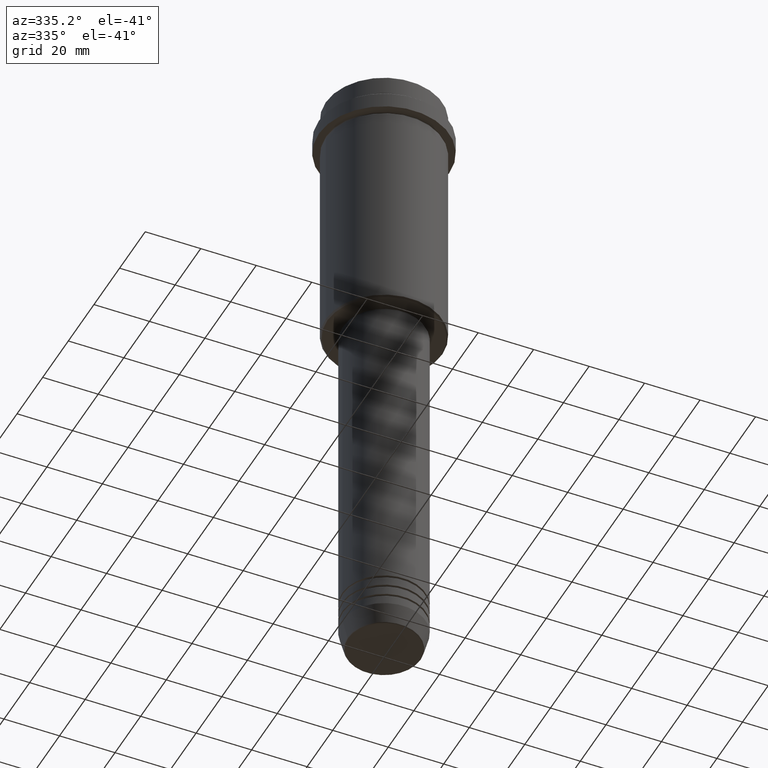
[diagram: clean part render]
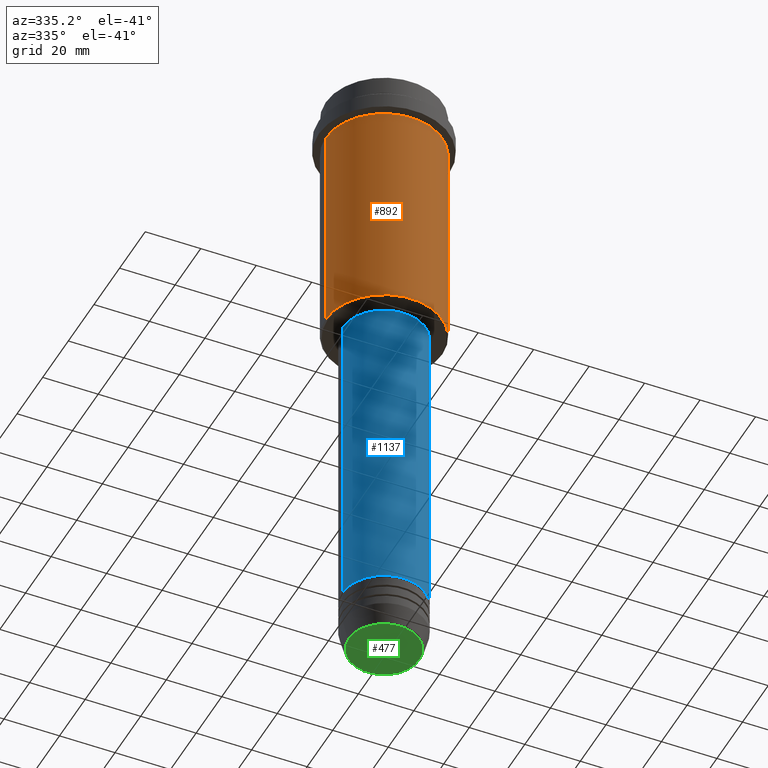
[diagram: same view with three faces highlighted in distinct colors, each labeled with its STEP entity id]
A machine part, auxiliary view with three faces highlighted in distinct colors.
Their STEP definitions:

[orange] entity #892 — the highlighted cylindrical surface (partial cylindrical patch) has radius 21 mm, axis along (-0, -0, 1).
#37 = CARTESIAN_POINT ( 'NONE',  ( -20.99999999999999645, 2.571758278209441267E-15, 0.000000000000000000 ) ) ;
#66 = CARTESIAN_POINT ( 'NONE',  ( -20.99999999999999645, 2.571758278209441267E-15, -94.49999999999997158 ) ) ;
#86 = EDGE_LOOP ( 'NONE', ( #1110, #1113, #465, #127 ) ) ;
#110 = VERTEX_POINT ( 'NONE', #855 ) ;
#127 = ORIENTED_EDGE ( 'NONE', *, *, #458, .F. ) ;
#152 = LINE ( 'NONE', #37, #182 ) ;
#161 = CARTESIAN_POINT ( 'NONE',  ( 0.000000000000000000, 0.000000000000000000, -94.49999999999997158 ) ) ;
#182 = VECTOR ( 'NONE', #1343, 1000.000000000000000 ) ;
#214 = VERTEX_POINT ( 'NONE', #679 ) ;
#226 = EDGE_CURVE ( 'NONE', #987, #973, #152, .T. ) ;
#239 = CIRCLE ( 'NONE', #1297, 20.99999999999999645 ) ;
#267 = FACE_OUTER_BOUND ( 'NONE', #86, .T. ) ;
#280 = DIRECTION ( 'NONE',  ( -1.000000000000000000, 0.000000000000000000, 0.000000000000000000 ) ) ;
#390 = DIRECTION ( 'NONE',  ( -0.000000000000000000, -0.000000000000000000, 1.000000000000000000 ) ) ;
#415 = AXIS2_PLACEMENT_3D ( 'NONE', #161, #390, #280 ) ;
#418 = VECTOR ( 'NONE', #638, 1000.000000000000000 ) ;
#458 = EDGE_CURVE ( 'NONE', #973, #214, #239, .T. ) ;
#465 = ORIENTED_EDGE ( 'NONE', *, *, #674, .T. ) ;
#471 = CARTESIAN_POINT ( 'NONE',  ( 0.000000000000000000, 0.000000000000000000, 0.000000000000000000 ) ) ;
#505 = EDGE_CURVE ( 'NONE', #987, #110, #858, .T. ) ;
#513 = CARTESIAN_POINT ( 'NONE',  ( -20.99999999999999645, 2.571758278209441267E-15, -16.00000000000000355 ) ) ;
#586 = AXIS2_PLACEMENT_3D ( 'NONE', #471, #810, #1057 ) ;
#604 = CYLINDRICAL_SURFACE ( 'NONE', #586, 20.99999999999999645 ) ;
#638 = DIRECTION ( 'NONE',  ( -0.000000000000000000, -0.000000000000000000, 1.000000000000000000 ) ) ;
#668 = DIRECTION ( 'NONE',  ( 1.000000000000000000, 0.000000000000000000, 0.000000000000000000 ) ) ;
#674 = EDGE_CURVE ( 'NONE', #110, #214, #967, .T. ) ;
#679 = CARTESIAN_POINT ( 'NONE',  ( 20.99999999999999645, 0.000000000000000000, -16.00000000000000355 ) ) ;
#810 = DIRECTION ( 'NONE',  ( -0.000000000000000000, -0.000000000000000000, 1.000000000000000000 ) ) ;
#855 = CARTESIAN_POINT ( 'NONE',  ( 20.99999999999999645, 0.000000000000000000, -94.49999999999997158 ) ) ;
#858 = CIRCLE ( 'NONE', #415, 20.99999999999999645 ) ;
#892 = ADVANCED_FACE ( 'NONE', ( #267 ), #604, .T. ) ;
#967 = LINE ( 'NONE', #1293, #418 ) ;
#973 = VERTEX_POINT ( 'NONE', #513 ) ;
#987 = VERTEX_POINT ( 'NONE', #66 ) ;
#1037 = CARTESIAN_POINT ( 'NONE',  ( 0.000000000000000000, 0.000000000000000000, -16.00000000000000355 ) ) ;
#1057 = DIRECTION ( 'NONE',  ( 1.000000000000000000, 0.000000000000000000, 0.000000000000000000 ) ) ;
#1110 = ORIENTED_EDGE ( 'NONE', *, *, #226, .F. ) ;
#1113 = ORIENTED_EDGE ( 'NONE', *, *, #505, .T. ) ;
#1197 = DIRECTION ( 'NONE',  ( -0.000000000000000000, -0.000000000000000000, 1.000000000000000000 ) ) ;
#1293 = CARTESIAN_POINT ( 'NONE',  ( 20.99999999999999645, 0.000000000000000000, 0.000000000000000000 ) ) ;
#1297 = AXIS2_PLACEMENT_3D ( 'NONE', #1037, #1197, #668 ) ;
#1343 = DIRECTION ( 'NONE',  ( -0.000000000000000000, -0.000000000000000000, 1.000000000000000000 ) ) ;

[blue] entity #1137 — the highlighted cylindrical surface (partial cylindrical patch) has radius 15 mm, axis along (-0, -0, 1).
#12 = LINE ( 'NONE', #434, #1319 ) ;
#39 = ORIENTED_EDGE ( 'NONE', *, *, #1142, .F. ) ;
#89 = CARTESIAN_POINT ( 'NONE',  ( -15.00000000000000000, 1.836970198721029589E-15, -96.00000000000000000 ) ) ;
#104 = ORIENTED_EDGE ( 'NONE', *, *, #200, .F. ) ;
#185 = AXIS2_PLACEMENT_3D ( 'NONE', #1005, #1104, #452 ) ;
#200 = EDGE_CURVE ( 'NONE', #551, #1395, #511, .T. ) ;
#211 = DIRECTION ( 'NONE',  ( -0.000000000000000000, -0.000000000000000000, 1.000000000000000000 ) ) ;
#229 = CARTESIAN_POINT ( 'NONE',  ( 0.000000000000000000, 0.000000000000000000, 0.000000000000000000 ) ) ;
#300 = DIRECTION ( 'NONE',  ( 1.000000000000000000, 0.000000000000000000, 0.000000000000000000 ) ) ;
#301 = AXIS2_PLACEMENT_3D ( 'NONE', #1383, #406, #300 ) ;
#302 = CARTESIAN_POINT ( 'NONE',  ( 15.00000000000000000, 0.000000000000000000, -210.9999999999999432 ) ) ;
#325 = CARTESIAN_POINT ( 'NONE',  ( -15.00000000000000000, 1.836970198721029589E-15, -210.9999999999999432 ) ) ;
#388 = CARTESIAN_POINT ( 'NONE',  ( 15.00000000000000000, 0.000000000000000000, -96.00000000000000000 ) ) ;
#406 = DIRECTION ( 'NONE',  ( -0.000000000000000000, -0.000000000000000000, 1.000000000000000000 ) ) ;
#434 = CARTESIAN_POINT ( 'NONE',  ( -15.00000000000000000, 1.836970198721029589E-15, 0.000000000000000000 ) ) ;
#452 = DIRECTION ( 'NONE',  ( 1.000000000000000000, 0.000000000000000000, 0.000000000000000000 ) ) ;
#511 = CIRCLE ( 'NONE', #301, 15.00000000000000000 ) ;
#551 = VERTEX_POINT ( 'NONE', #89 ) ;
#566 = VECTOR ( 'NONE', #749, 1000.000000000000000 ) ;
#669 = FACE_OUTER_BOUND ( 'NONE', #970, .T. ) ;
#749 = DIRECTION ( 'NONE',  ( -0.000000000000000000, -0.000000000000000000, 1.000000000000000000 ) ) ;
#777 = EDGE_CURVE ( 'NONE', #1108, #1035, #1212, .T. ) ;
#861 = AXIS2_PLACEMENT_3D ( 'NONE', #229, #211, #1414 ) ;
#873 = DIRECTION ( 'NONE',  ( -0.000000000000000000, -0.000000000000000000, 1.000000000000000000 ) ) ;
#970 = EDGE_LOOP ( 'NONE', ( #39, #1258, #1411, #104 ) ) ;
#982 = EDGE_CURVE ( 'NONE', #1035, #1395, #1170, .T. ) ;
#1005 = CARTESIAN_POINT ( 'NONE',  ( 0.000000000000000000, 0.000000000000000000, -210.9999999999999432 ) ) ;
#1035 = VERTEX_POINT ( 'NONE', #302 ) ;
#1104 = DIRECTION ( 'NONE',  ( -0.000000000000000000, -0.000000000000000000, 1.000000000000000000 ) ) ;
#1108 = VERTEX_POINT ( 'NONE', #325 ) ;
#1137 = ADVANCED_FACE ( 'NONE', ( #669 ), #1203, .T. ) ;
#1142 = EDGE_CURVE ( 'NONE', #1108, #551, #12, .T. ) ;
#1170 = LINE ( 'NONE', #1290, #566 ) ;
#1203 = CYLINDRICAL_SURFACE ( 'NONE', #861, 15.00000000000000000 ) ;
#1212 = CIRCLE ( 'NONE', #185, 15.00000000000000000 ) ;
#1258 = ORIENTED_EDGE ( 'NONE', *, *, #777, .T. ) ;
#1290 = CARTESIAN_POINT ( 'NONE',  ( 15.00000000000000000, 0.000000000000000000, 0.000000000000000000 ) ) ;
#1319 = VECTOR ( 'NONE', #873, 1000.000000000000000 ) ;
#1383 = CARTESIAN_POINT ( 'NONE',  ( 0.000000000000000000, 0.000000000000000000, -96.00000000000000000 ) ) ;
#1395 = VERTEX_POINT ( 'NONE', #388 ) ;
#1411 = ORIENTED_EDGE ( 'NONE', *, *, #982, .T. ) ;
#1414 = DIRECTION ( 'NONE',  ( 1.000000000000000000, 0.000000000000000000, 0.000000000000000000 ) ) ;

[green] entity #477 — the highlighted planar face has unit normal (0, -0, 1).
#46 = CIRCLE ( 'NONE', #953, 12.74069215899266361 ) ;
#136 = VERTEX_POINT ( 'NONE', #1288 ) ;
#260 = DIRECTION ( 'NONE',  ( 1.000000000000000000, 0.000000000000000000, 0.000000000000000000 ) ) ;
#261 = AXIS2_PLACEMENT_3D ( 'NONE', #1220, #829, #260 ) ;
#417 = EDGE_CURVE ( 'NONE', #645, #136, #46, .T. ) ;
#451 = AXIS2_PLACEMENT_3D ( 'NONE', #553, #882, #1227 ) ;
#477 = ADVANCED_FACE ( 'NONE', ( #780 ), #774, .F. ) ;
#523 = CARTESIAN_POINT ( 'NONE',  ( -12.74069215899266361, 1.589857736427681429E-15, -230.0000000000000284 ) ) ;
#553 = CARTESIAN_POINT ( 'NONE',  ( 0.000000000000000000, 0.000000000000000000, -230.0000000000000284 ) ) ;
#645 = VERTEX_POINT ( 'NONE', #523 ) ;
#659 = CIRCLE ( 'NONE', #451, 12.74069215899266361 ) ;
#735 = ORIENTED_EDGE ( 'NONE', *, *, #417, .T. ) ;
#774 = PLANE ( 'NONE',  #261 ) ;
#780 = FACE_OUTER_BOUND ( 'NONE', #1031, .T. ) ;
#818 = DIRECTION ( 'NONE',  ( 0.000000000000000000, 0.000000000000000000, -1.000000000000000000 ) ) ;
#829 = DIRECTION ( 'NONE',  ( 0.000000000000000000, -0.000000000000000000, 1.000000000000000000 ) ) ;
#847 = ORIENTED_EDGE ( 'NONE', *, *, #1202, .T. ) ;
#882 = DIRECTION ( 'NONE',  ( 0.000000000000000000, 0.000000000000000000, -1.000000000000000000 ) ) ;
#942 = CARTESIAN_POINT ( 'NONE',  ( 0.000000000000000000, 0.000000000000000000, -230.0000000000000284 ) ) ;
#953 = AXIS2_PLACEMENT_3D ( 'NONE', #942, #818, #1270 ) ;
#1031 = EDGE_LOOP ( 'NONE', ( #847, #735 ) ) ;
#1202 = EDGE_CURVE ( 'NONE', #136, #645, #659, .T. ) ;
#1220 = CARTESIAN_POINT ( 'NONE',  ( 0.000000000000000000, 0.000000000000000000, -230.0000000000000284 ) ) ;
#1227 = DIRECTION ( 'NONE',  ( 1.000000000000000000, 0.000000000000000000, 0.000000000000000000 ) ) ;
#1270 = DIRECTION ( 'NONE',  ( 1.000000000000000000, 0.000000000000000000, 0.000000000000000000 ) ) ;
#1288 = CARTESIAN_POINT ( 'NONE',  ( 12.74069215899266361, 0.000000000000000000, -230.0000000000000284 ) ) ;